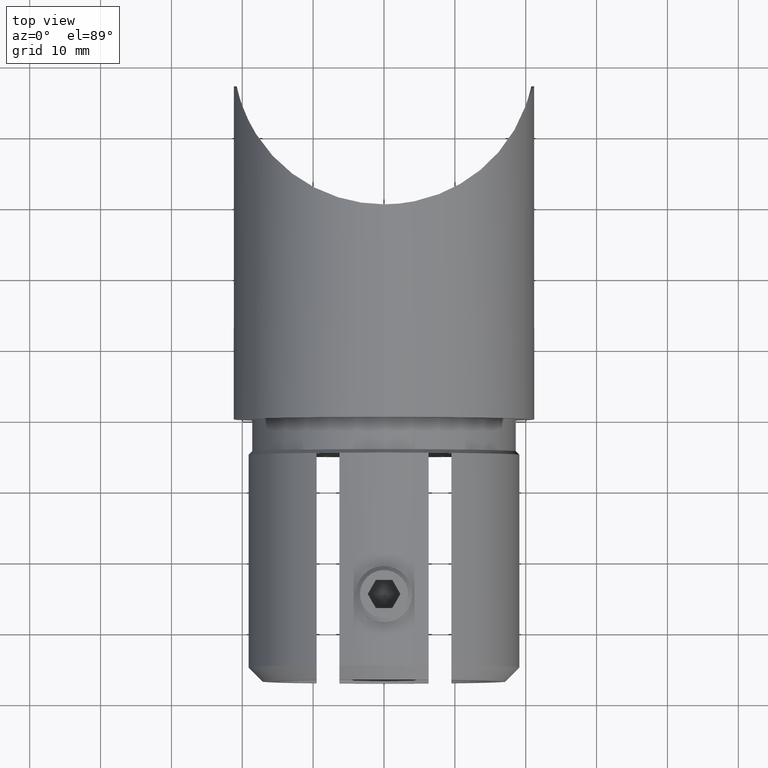
[diagram: clean part render]
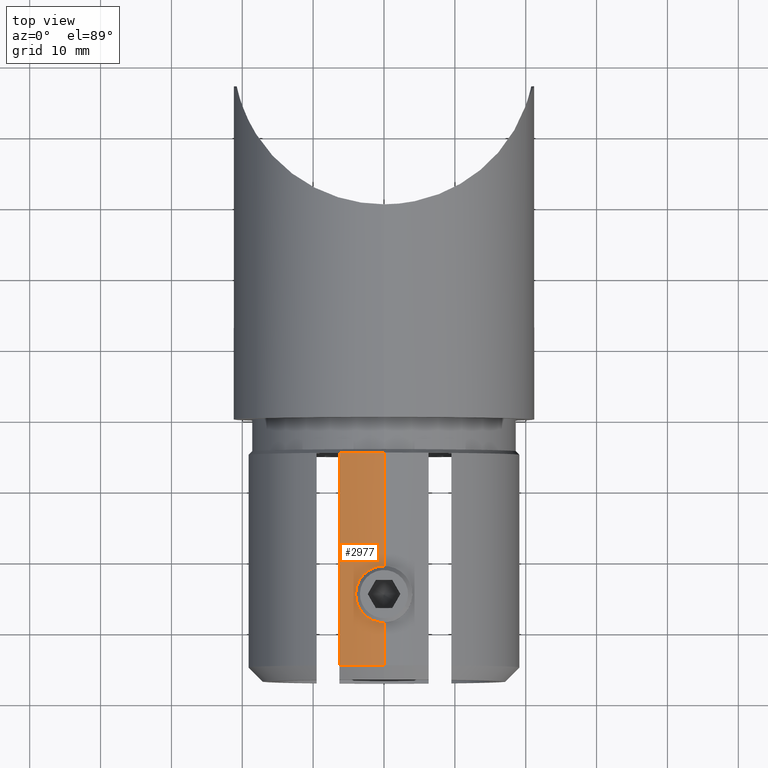
[diagram: same view with one face highlighted and labeled with its STEP entity id]
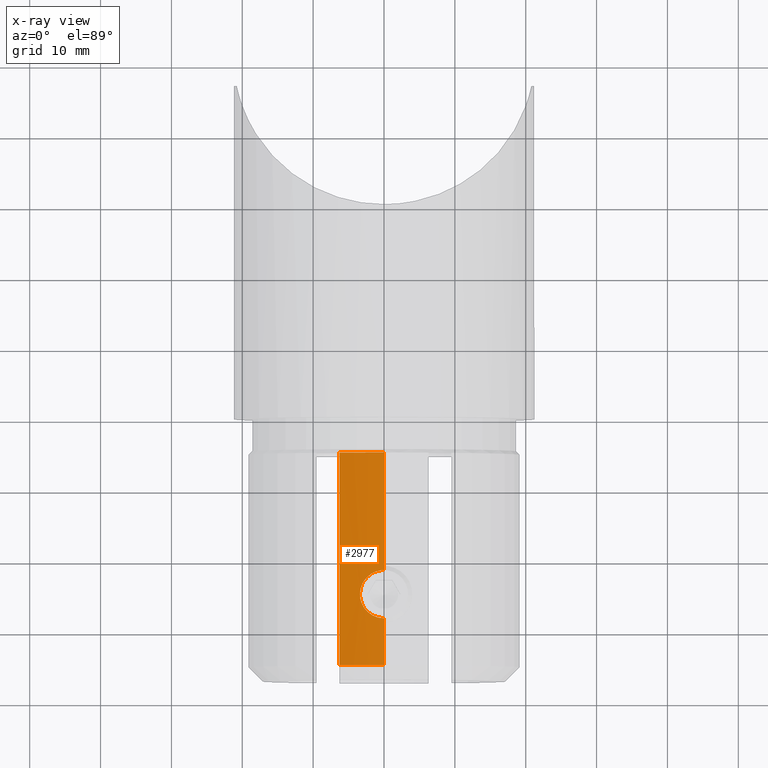
[diagram: x-ray of the same camera — body ghosted, the highlighted face saturated]
A machine part, top view. The second image highlights one B-rep face of the part: STEP entity #2977.
The next image is the same camera in x-ray: the body ghosted, the highlighted face saturated — about 0% of this face is hidden behind the body in this view.
In plain terms, the highlighted cylindrical surface (partial cylindrical patch) has radius 19.2 mm, axis along (0, 1, 0).
Its self-contained STEP definition (entity closure, byte-faithful):
#83 = CARTESIAN_POINT ( 'NONE',  ( -3.055727400500110500, -26.50733119683281900, 18.95547383769931200 ) ) ;
#252 = CARTESIAN_POINT ( 'NONE',  ( -6.299999999999998900, -4.999999999999992000, 18.13697880023021400 ) ) ;
#317 = ORIENTED_EDGE ( 'NONE', *, *, #590, .T. ) ;
#388 = EDGE_LOOP ( 'NONE', ( #317, #11980, #462, #8854, #2747, #3431, #6031 ) ) ;
#462 = ORIENTED_EDGE ( 'NONE', *, *, #8369, .T. ) ;
#561 = CARTESIAN_POINT ( 'NONE',  ( -1.509955279221359300, -21.94551388190653900, 19.14164968034865000 ) ) ;
#590 = EDGE_CURVE ( 'NONE', #5958, #3109, #6643, .T. ) ;
#651 = CARTESIAN_POINT ( 'NONE',  ( -3.290900205689536200, -24.11664891459425100, 18.91591793019441800 ) ) ;
#700 = CARTESIAN_POINT ( 'NONE',  ( -3.225675271749277200, -23.90267888102380700, 18.92729289852870900 ) ) ;
#1109 = VECTOR ( 'NONE', #8906, 1000.000000000000000 ) ;
#1137 = CARTESIAN_POINT ( 'NONE',  ( -1.508404157728751000, -28.05523631818846300, 19.14177017049258500 ) ) ;
#1244 = VECTOR ( 'NONE', #12674, 1000.000000000000000 ) ;
#1448 = CARTESIAN_POINT ( 'NONE',  ( -4.330278389811595700E-022, -21.60000000000000900, 19.19999999999999900 ) ) ;
#1710 = CARTESIAN_POINT ( 'NONE',  ( -1.097545462126519700, -21.77428390129577800, 19.16971860484668600 ) ) ;
#2184 = CARTESIAN_POINT ( 'NONE',  ( -3.226124113009859200, -26.09619363735106700, 18.92721800913506400 ) ) ;
#2227 = CARTESIAN_POINT ( 'NONE',  ( -3.399999999999989300, -25.00000000000000000, 18.89656053359975700 ) ) ;
#2264 = CARTESIAN_POINT ( 'NONE',  ( -2.562863710095955900, -27.24538851297036500, 19.02885010893680100 ) ) ;
#2314 = CARTESIAN_POINT ( 'NONE',  ( 2.376640692204603300E-023, -28.39999999999999500, 19.19999999999999900 ) ) ;
#2441 = CARTESIAN_POINT ( 'NONE',  ( -3.399999999999989300, -25.00000000000000000, 18.89656053359975700 ) ) ;
#2747 = ORIENTED_EDGE ( 'NONE', *, *, #3639, .T. ) ;
#2942 = EDGE_CURVE ( 'NONE', #3109, #10447, #12356, .T. ) ;
#2977 = ADVANCED_FACE ( 'NONE', ( #8096 ), #4967, .T. ) ;
#3109 = VERTEX_POINT ( 'NONE', #6293 ) ;
#3119 = CARTESIAN_POINT ( 'NONE',  ( -6.299999999999999800, -37.00000000000000000, 18.13697880023020700 ) ) ;
#3155 = B_SPLINE_CURVE_WITH_KNOTS ( 'NONE', 3,
 ( #3819, #12020, #5804, #651, #700, #8881, #11045, #6890, #3776, #4762, #5667, #9873, #561, #1710, #7879, #8979, #4804, #5756 ),
 .UNSPECIFIED., .F., .F.,
 ( 4, 2, 2, 2, 2, 2, 2, 2, 4 ),
 ( 0.01065094799892845000, 0.01131670407813122900, 0.01198246015733401100, 0.01264821623653679000, 0.01331397231573957000, 0.01397972839494235200, 0.01464548447414513100, 0.01531124055334791300, 0.01597699663255069300 ),
 .UNSPECIFIED. ) ;
#3261 = EDGE_CURVE ( 'NONE', #4667, #7957, #3155, .T. ) ;
#3296 = CARTESIAN_POINT ( 'NONE',  ( -2.703116601869896700, -27.07415328518139600, 19.00917215082173300 ) ) ;
#3404 = CARTESIAN_POINT ( 'NONE',  ( 0.0000000000000000000, -35.00000000000000700, 0.0000000000000000000 ) ) ;
#3431 = ORIENTED_EDGE ( 'NONE', *, *, #8427, .T. ) ;
#3589 = DIRECTION ( 'NONE',  ( 3.552713678800500900E-015, 0.0000000000000000000, -1.000000000000000000 ) ) ;
#3639 = EDGE_CURVE ( 'NONE', #7957, #9263, #6744, .T. ) ;
#3776 = CARTESIAN_POINT ( 'NONE',  ( -2.561689089794108900, -22.75347175698437500, 19.02899612307700400 ) ) ;
#3819 = CARTESIAN_POINT ( 'NONE',  ( -3.399999999999989300, -25.00000000000000000, 18.89656053359975700 ) ) ;
#4322 = CARTESIAN_POINT ( 'NONE',  ( -3.377742567516359300, -25.44767411262656900, 18.90060357828731000 ) ) ;
#4433 = CARTESIAN_POINT ( 'NONE',  ( 0.0000000000000000000, -37.00000000000000000, 19.19999999999999900 ) ) ;
#4667 = VERTEX_POINT ( 'NONE', #2441 ) ;
#4762 = CARTESIAN_POINT ( 'NONE',  ( -2.248300743652123800, -22.43986642818575200, 19.06856282499923700 ) ) ;
#4804 = CARTESIAN_POINT ( 'NONE',  ( -0.2246373382171390200, -21.60000000000001600, 19.19999999999999900 ) ) ;
#4967 = CYLINDRICAL_SURFACE ( 'NONE', #11144, 19.19999999999999900 ) ;
#5667 = CARTESIAN_POINT ( 'NONE',  ( -2.073615047962044300, -22.29643717384373100, 19.08859379067696000 ) ) ;
#5756 = CARTESIAN_POINT ( 'NONE',  ( -4.330278389811595700E-022, -21.60000000000000900, 19.19999999999999900 ) ) ;
#5804 = CARTESIAN_POINT ( 'NONE',  ( -3.378438096958336100, -24.55672883139607200, 18.90047965874619600 ) ) ;
#5865 = AXIS2_PLACEMENT_3D ( 'NONE', #7632, #11769, #12840 ) ;
#5958 = VERTEX_POINT ( 'NONE', #10358 ) ;
#6031 = ORIENTED_EDGE ( 'NONE', *, *, #7243, .T. ) ;
#6187 = DIRECTION ( 'NONE',  ( 0.0000000000000000000, -1.000000000000000000, 0.0000000000000000000 ) ) ;
#6265 = CARTESIAN_POINT ( 'NONE',  ( -2.074450551975795900, -27.70288525079823600, 19.08849887663496900 ) ) ;
#6293 = CARTESIAN_POINT ( 'NONE',  ( 0.0000000000000000000, -35.00000000000000700, 19.19999999999999900 ) ) ;
#6317 = CARTESIAN_POINT ( 'NONE',  ( -2.246583337770912300, -27.56181640192191700, 19.06877736435561100 ) ) ;
#6409 = CARTESIAN_POINT ( 'NONE',  ( -3.399999999999989700, -25.22207978690502700, 18.89656053359975700 ) ) ;
#6643 = CIRCLE ( 'NONE', #10687, 19.19999999999999900 ) ;
#6744 = LINE ( 'NONE', #4433, #1244 ) ;
#6890 = CARTESIAN_POINT ( 'NONE',  ( -2.702112438114518500, -22.92436011578121200, 19.00932112190179900 ) ) ;
#7243 = EDGE_CURVE ( 'NONE', #7814, #5958, #8969, .T. ) ;
#7426 = CARTESIAN_POINT ( 'NONE',  ( -0.8842266540294244600, -28.29053582957309100, 19.18087026755462400 ) ) ;
#7632 = CARTESIAN_POINT ( 'NONE',  ( 0.0000000000000000000, -4.999999999999986700, 0.0000000000000000000 ) ) ;
#7769 = DIRECTION ( 'NONE',  ( 0.0000000000000000000, 0.0000000000000000000, 1.000000000000000000 ) ) ;
#7814 = VERTEX_POINT ( 'NONE', #252 ) ;
#7879 = CARTESIAN_POINT ( 'NONE',  ( -0.8820441870121937800, -21.70892547810215600, 19.18096320701138400 ) ) ;
#7957 = VERTEX_POINT ( 'NONE', #1448 ) ;
#8096 = FACE_OUTER_BOUND ( 'NONE', #388, .T. ) ;
#8369 = EDGE_CURVE ( 'NONE', #10447, #4667, #13023, .T. ) ;
#8424 = CARTESIAN_POINT ( 'NONE',  ( 2.376640692204603300E-023, -28.39999999999999500, 19.19999999999999900 ) ) ;
#8427 = EDGE_CURVE ( 'NONE', #9263, #7814, #9567, .T. ) ;
#8445 = CARTESIAN_POINT ( 'NONE',  ( -0.4479530781158717600, -28.37769460745150200, 19.19601466545239900 ) ) ;
#8854 = ORIENTED_EDGE ( 'NONE', *, *, #3261, .T. ) ;
#8881 = CARTESIAN_POINT ( 'NONE',  ( -3.055975881202706500, -23.49331290228087700, 18.95543217230821800 ) ) ;
#8906 = DIRECTION ( 'NONE',  ( -0.0000000000000000000, 1.000000000000000000, -0.0000000000000000000 ) ) ;
#8969 = LINE ( 'NONE', #3119, #12885 ) ;
#8979 = CARTESIAN_POINT ( 'NONE',  ( -0.4470969880332798500, -21.62223776150263900, 19.19602708322370800 ) ) ;
#9263 = VERTEX_POINT ( 'NONE', #10950 ) ;
#9567 = CIRCLE ( 'NONE', #5865, 19.19999999999999900 ) ;
#9582 = CARTESIAN_POINT ( 'NONE',  ( -1.096325849442064500, -28.22611557370103000, 19.16978659231390800 ) ) ;
#9771 = CARTESIAN_POINT ( 'NONE',  ( 0.0000000000000000000, -37.00000000000000000, 0.0000000000000000000 ) ) ;
#9873 = CARTESIAN_POINT ( 'NONE',  ( -1.705049084708409700, -22.05009509630500700, 19.12503855921186300 ) ) ;
#9940 = DIRECTION ( 'NONE',  ( -0.0000000000000000000, 1.000000000000000000, -0.0000000000000000000 ) ) ;
#10358 = CARTESIAN_POINT ( 'NONE',  ( -6.299999999999999800, -35.00000000000000700, 18.13697880023021000 ) ) ;
#10447 = VERTEX_POINT ( 'NONE', #8424 ) ;
#10574 = CARTESIAN_POINT ( 'NONE',  ( -2.949125976129830700, -26.70634322181960800, 18.97256232562690300 ) ) ;
#10678 = DIRECTION ( 'NONE',  ( 0.0000000000000000000, 1.000000000000000000, 0.0000000000000000000 ) ) ;
#10687 = AXIS2_PLACEMENT_3D ( 'NONE', #3404, #10678, #3589 ) ;
#10950 = CARTESIAN_POINT ( 'NONE',  ( 0.0000000000000000000, -4.999999999999986700, 19.19999999999999900 ) ) ;
#10982 = CARTESIAN_POINT ( 'NONE',  ( 0.0000000000000000000, -37.00000000000000000, 19.19999999999999900 ) ) ;
#11045 = CARTESIAN_POINT ( 'NONE',  ( -2.949991273176656200, -23.29493576503566400, 18.97243401970281000 ) ) ;
#11144 = AXIS2_PLACEMENT_3D ( 'NONE', #9771, #9940, #7769 ) ;
#11479 = CARTESIAN_POINT ( 'NONE',  ( -0.2222045776465042300, -28.39999999999998400, 19.19999999999999900 ) ) ;
#11769 = DIRECTION ( 'NONE',  ( -0.0000000000000000000, -1.000000000000000000, -0.0000000000000000000 ) ) ;
#11980 = ORIENTED_EDGE ( 'NONE', *, *, #2942, .T. ) ;
#12020 = CARTESIAN_POINT ( 'NONE',  ( -3.399999999999989300, -24.77784230014930200, 18.89656053359976100 ) ) ;
#12356 = LINE ( 'NONE', #10982, #1109 ) ;
#12568 = CARTESIAN_POINT ( 'NONE',  ( -1.706736057763372100, -27.94889569173032800, 19.12488396004057700 ) ) ;
#12674 = DIRECTION ( 'NONE',  ( -0.0000000000000000000, 1.000000000000000000, -0.0000000000000000000 ) ) ;
#12703 = CARTESIAN_POINT ( 'NONE',  ( -3.290533460267476100, -25.88427739447989500, 18.91598133914387600 ) ) ;
#12840 = DIRECTION ( 'NONE',  ( 0.0000000000000000000, 0.0000000000000000000, -1.000000000000000000 ) ) ;
#12885 = VECTOR ( 'NONE', #6187, 1000.000000000000000 ) ;
#13023 = B_SPLINE_CURVE_WITH_KNOTS ( 'NONE', 3,
 ( #2314, #11479, #8445, #7426, #9582, #1137, #12568, #6265, #6317, #2264, #3296, #10574, #83, #2184, #12703, #4322, #6409, #2227 ),
 .UNSPECIFIED., .F., .F.,
 ( 4, 2, 2, 2, 2, 2, 2, 2, 4 ),
 ( 0.005326767264272230400, 0.005992289856104258300, 0.006657812447936285200, 0.007323335039768312200, 0.007988857631600340000, 0.008654380223432367800, 0.009319902815264395600, 0.009985425407096421700, 0.01065094799892845000 ),
 .UNSPECIFIED. ) ;